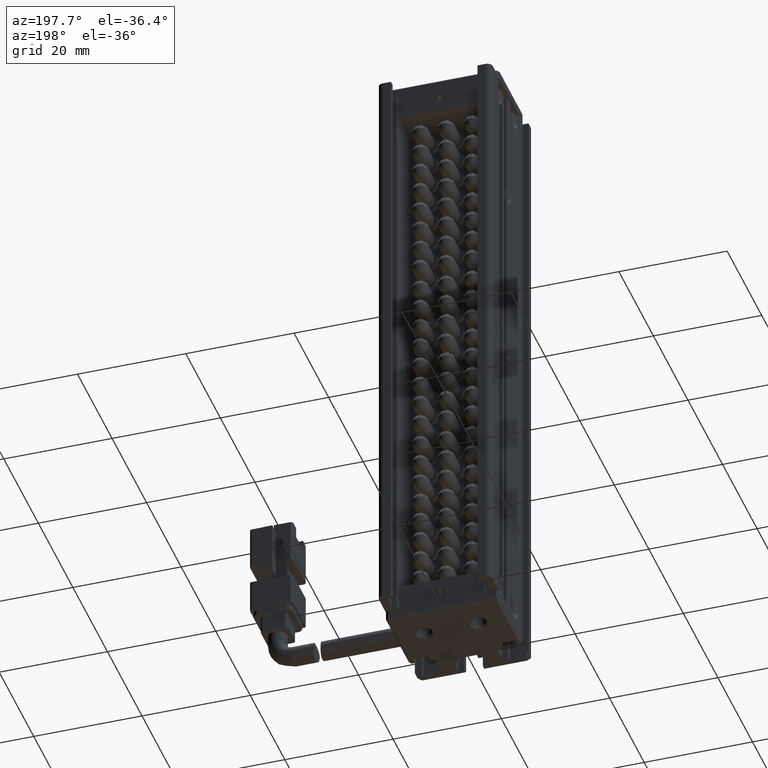
[diagram: clean part render]
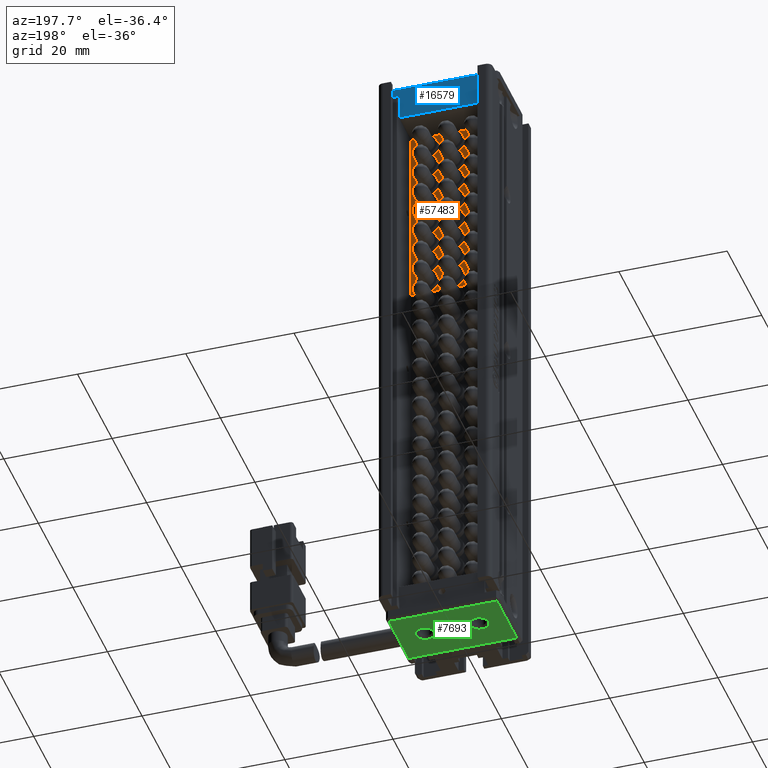
[diagram: same view with three faces highlighted in distinct colors, each labeled with its STEP entity id]
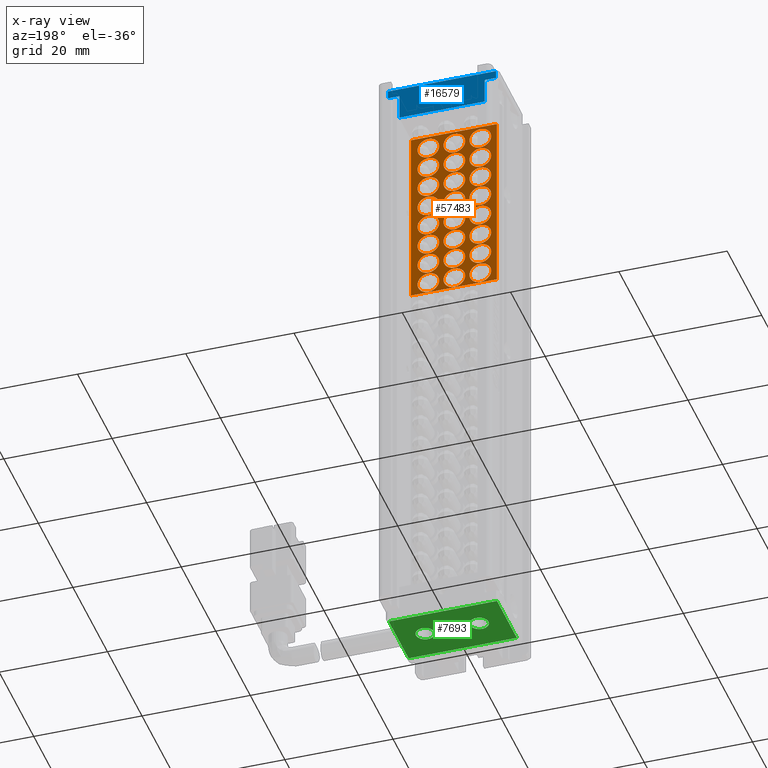
[diagram: x-ray of the same camera — body ghosted, the three highlighted faces saturated]
A machine part, auxiliary view with three faces highlighted in distinct colors.
The next image is the same camera in x-ray (body ghosted, the three faces saturated) — at least one of them is partly hidden behind the body in this view.
Their STEP definitions:

[orange] entity #57483 — the highlighted planar face has unit normal (0, 1, 0).
#55 = AXIS2_PLACEMENT_3D ( 'NONE', #61086, #66676, #21617 ) ;
#68 = CIRCLE ( 'NONE', #17931, 2.000000000000001800 ) ;
#113 = CARTESIAN_POINT ( 'NONE',  ( 36.07537974683543100, 24.49073232304837000, -93.33000000000001300 ) ) ;
#312 = EDGE_CURVE ( 'NONE', #53143, #15955, #49645, .T. ) ;
#319 = CARTESIAN_POINT ( 'NONE',  ( 40.87537974683542800, 24.49073232304837000, -82.93000000000000700 ) ) ;
#407 = CARTESIAN_POINT ( 'NONE',  ( 36.07537974683543100, 24.49073232304837000, -87.12999999999999500 ) ) ;
#472 = ORIENTED_EDGE ( 'NONE', *, *, #59220, .T. ) ;
#491 = EDGE_CURVE ( 'NONE', #19416, #27762, #6587, .T. ) ;
#799 = CIRCLE ( 'NONE', #23007, 2.000000000000001800 ) ;
#885 = VERTEX_POINT ( 'NONE', #5849 ) ;
#966 = VERTEX_POINT ( 'NONE', #40667 ) ;
#1138 = VERTEX_POINT ( 'NONE', #31516 ) ;
#1388 = CIRCLE ( 'NONE', #8320, 2.000000000000001800 ) ;
#1466 = FACE_BOUND ( 'NONE', #12644, .T. ) ;
#1674 = EDGE_CURVE ( 'NONE', #34338, #45052, #68198, .T. ) ;
#1710 = VERTEX_POINT ( 'NONE', #43507 ) ;
#1824 = ORIENTED_EDGE ( 'NONE', *, *, #18839, .T. ) ;
#1922 = CIRCLE ( 'NONE', #39551, 2.000000000000001800 ) ;
#1960 = ORIENTED_EDGE ( 'NONE', *, *, #66289, .T. ) ;
#2003 = VERTEX_POINT ( 'NONE', #31208 ) ;
#2061 = CARTESIAN_POINT ( 'NONE',  ( 40.87537974683542800, 24.49073232304837000, -89.33000000000001300 ) ) ;
#2177 = CIRCLE ( 'NONE', #32893, 2.000000000000001800 ) ;
#2537 = CIRCLE ( 'NONE', #13891, 2.000000000000001800 ) ;
#2540 = AXIS2_PLACEMENT_3D ( 'NONE', #16812, #22430, #16108 ) ;
#2791 = ORIENTED_EDGE ( 'NONE', *, *, #9271, .T. ) ;
#3012 = CIRCLE ( 'NONE', #64262, 2.000000000000001800 ) ;
#3021 = DIRECTION ( 'NONE',  ( 0.0000000000000000000, 0.0000000000000000000, 1.000000000000000000 ) ) ;
#3095 = DIRECTION ( 'NONE',  ( 0.0000000000000000000, -1.000000000000000000, -0.0000000000000000000 ) ) ;
#3464 = CARTESIAN_POINT ( 'NONE',  ( 48.92537974683542500, 24.49073232304837000, -97.65000000000000600 ) ) ;
#3503 = EDGE_LOOP ( 'NONE', ( #66013, #7869 ) ) ;
#3518 = EDGE_LOOP ( 'NONE', ( #11666, #41516 ) ) ;
#3782 = DIRECTION ( 'NONE',  ( 0.0000000000000000000, 0.0000000000000000000, 1.000000000000000000 ) ) ;
#3823 = DIRECTION ( 'NONE',  ( 0.0000000000000000000, -1.000000000000000000, -0.0000000000000000000 ) ) ;
#3896 = DIRECTION ( 'NONE',  ( 0.0000000000000000000, -1.000000000000000000, -0.0000000000000000000 ) ) ;
#3968 = CARTESIAN_POINT ( 'NONE',  ( 40.87537974683542800, 24.49073232304837000, -72.33000000000001300 ) ) ;
#4273 = EDGE_LOOP ( 'NONE', ( #51570, #46376 ) ) ;
#4624 = EDGE_LOOP ( 'NONE', ( #66803, #34521 ) ) ;
#5050 = CARTESIAN_POINT ( 'NONE',  ( 45.67537974683543200, 24.49073232304837000, -80.93000000000000700 ) ) ;
#5275 = CARTESIAN_POINT ( 'NONE',  ( 45.67537974683543200, 24.49073232304837000, -89.12999999999999500 ) ) ;
#5312 = VERTEX_POINT ( 'NONE', #31710 ) ;
#5634 = DIRECTION ( 'NONE',  ( 0.0000000000000000000, -1.000000000000000000, -0.0000000000000000000 ) ) ;
#5646 = DIRECTION ( 'NONE',  ( 0.0000000000000000000, 0.0000000000000000000, 1.000000000000000000 ) ) ;
#5713 = VERTEX_POINT ( 'NONE', #30638 ) ;
#5846 = VERTEX_POINT ( 'NONE', #3464 ) ;
#5849 = CARTESIAN_POINT ( 'NONE',  ( 45.67537974683543200, 24.49073232304837000, -64.12999999999999500 ) ) ;
#5931 = AXIS2_PLACEMENT_3D ( 'NONE', #407, #10855, #22837 ) ;
#6430 = CARTESIAN_POINT ( 'NONE',  ( 45.67537974683543200, 24.49073232304837000, -74.53000000000000100 ) ) ;
#6447 = DIRECTION ( 'NONE',  ( 0.0000000000000000000, -1.000000000000000000, -0.0000000000000000000 ) ) ;
#6534 = EDGE_LOOP ( 'NONE', ( #27317, #1960 ) ) ;
#6587 = LINE ( 'NONE', #62687, #43470 ) ;
#6709 = FACE_BOUND ( 'NONE', #22883, .T. ) ;
#6790 = CARTESIAN_POINT ( 'NONE',  ( 36.07537974683543100, 24.49073232304837000, -70.32999999999999800 ) ) ;
#7025 = DIRECTION ( 'NONE',  ( 0.0000000000000000000, -1.000000000000000000, -0.0000000000000000000 ) ) ;
#7069 = EDGE_CURVE ( 'NONE', #25850, #46071, #10760, .T. ) ;
#7262 = DIRECTION ( 'NONE',  ( 0.0000000000000000000, 0.0000000000000000000, 1.000000000000000000 ) ) ;
#7332 = VERTEX_POINT ( 'NONE', #32083 ) ;
#7685 = EDGE_CURVE ( 'NONE', #34923, #24360, #61450, .T. ) ;
#7869 = ORIENTED_EDGE ( 'NONE', *, *, #21086, .T. ) ;
#8320 = AXIS2_PLACEMENT_3D ( 'NONE', #49371, #54257, #15453 ) ;
#8712 = DIRECTION ( 'NONE',  ( 0.0000000000000000000, 0.0000000000000000000, 1.000000000000000000 ) ) ;
#8741 = CARTESIAN_POINT ( 'NONE',  ( 36.07537974683543100, 24.49073232304837000, -97.53000000000000100 ) ) ;
#8888 = EDGE_CURVE ( 'NONE', #27762, #5846, #61302, .T. ) ;
#8898 = CIRCLE ( 'NONE', #21851, 2.000000000000001800 ) ;
#8972 = VERTEX_POINT ( 'NONE', #3968 ) ;
#9007 = ORIENTED_EDGE ( 'NONE', *, *, #57348, .T. ) ;
#9271 = EDGE_CURVE ( 'NONE', #21108, #30529, #2537, .T. ) ;
#9473 = VERTEX_POINT ( 'NONE', #8741 ) ;
#9483 = ORIENTED_EDGE ( 'NONE', *, *, #8888, .T. ) ;
#10243 = VERTEX_POINT ( 'NONE', #43280 ) ;
#10583 = EDGE_CURVE ( 'NONE', #29877, #28519, #67815, .T. ) ;
#10663 = CARTESIAN_POINT ( 'NONE',  ( 45.67537974683543200, 24.49073232304837000, -84.93000000000000700 ) ) ;
#10674 = VERTEX_POINT ( 'NONE', #71759 ) ;
#10760 = CIRCLE ( 'NONE', #59038, 2.000000000000001800 ) ;
#10855 = DIRECTION ( 'NONE',  ( 0.0000000000000000000, -1.000000000000000000, -0.0000000000000000000 ) ) ;
#10945 = DIRECTION ( 'NONE',  ( 0.0000000000000000000, -1.000000000000000000, -0.0000000000000000000 ) ) ;
#11140 = CARTESIAN_POINT ( 'NONE',  ( 40.87537974683542800, 24.49073232304837000, -74.53000000000000100 ) ) ;
#11207 = ORIENTED_EDGE ( 'NONE', *, *, #54862, .T. ) ;
#11386 = ORIENTED_EDGE ( 'NONE', *, *, #39947, .T. ) ;
#11666 = ORIENTED_EDGE ( 'NONE', *, *, #35017, .T. ) ;
#11685 = DIRECTION ( 'NONE',  ( 0.0000000000000000000, 0.0000000000000000000, 1.000000000000000000 ) ) ;
#11912 = DIRECTION ( 'NONE',  ( 0.0000000000000000000, -1.000000000000000000, -0.0000000000000000000 ) ) ;
#12151 = CARTESIAN_POINT ( 'NONE',  ( 36.07537974683543100, 24.49073232304837000, -91.33000000000001300 ) ) ;
#12165 = EDGE_CURVE ( 'NONE', #24360, #34923, #38180, .T. ) ;
#12239 = DIRECTION ( 'NONE',  ( 0.0000000000000000000, 0.0000000000000000000, 1.000000000000000000 ) ) ;
#12592 = LINE ( 'NONE', #34953, #39879 ) ;
#12644 = EDGE_LOOP ( 'NONE', ( #38757, #21013 ) ) ;
#12732 = CARTESIAN_POINT ( 'NONE',  ( 40.87537974683542800, 24.49073232304837000, -95.53000000000000100 ) ) ;
#12773 = FACE_BOUND ( 'NONE', #37575, .T. ) ;
#12917 = DIRECTION ( 'NONE',  ( 0.0000000000000000000, -1.000000000000000000, -0.0000000000000000000 ) ) ;
#12980 = EDGE_LOOP ( 'NONE', ( #39303, #11207 ) ) ;
#13309 = CARTESIAN_POINT ( 'NONE',  ( 40.87537974683542800, 24.49073232304837000, -97.53000000000000100 ) ) ;
#13356 = DIRECTION ( 'NONE',  ( 0.0000000000000000000, 0.0000000000000000000, 1.000000000000000000 ) ) ;
#13379 = CARTESIAN_POINT ( 'NONE',  ( 45.67537974683543200, 24.49073232304837000, -74.53000000000000100 ) ) ;
#13653 = FACE_BOUND ( 'NONE', #4624, .T. ) ;
#13664 = DIRECTION ( 'NONE',  ( 0.0000000000000000000, -1.000000000000000000, -0.0000000000000000000 ) ) ;
#13891 = AXIS2_PLACEMENT_3D ( 'NONE', #23706, #12917, #62905 ) ;
#14492 = FACE_BOUND ( 'NONE', #12980, .T. ) ;
#14705 = CARTESIAN_POINT ( 'NONE',  ( 36.07537974683543100, 24.49073232304837000, -91.33000000000001300 ) ) ;
#15077 = CARTESIAN_POINT ( 'NONE',  ( 40.87537974683542800, 24.49073232304837000, -70.32999999999999800 ) ) ;
#15158 = CIRCLE ( 'NONE', #34783, 2.000000000000001800 ) ;
#15453 = DIRECTION ( 'NONE',  ( 0.0000000000000000000, 0.0000000000000000000, 1.000000000000000000 ) ) ;
#15478 = CARTESIAN_POINT ( 'NONE',  ( 40.87537974683542800, 24.49073232304837000, -72.53000000000000100 ) ) ;
#15955 = VERTEX_POINT ( 'NONE', #47813 ) ;
#16108 = DIRECTION ( 'NONE',  ( 0.0000000000000000000, 0.0000000000000000000, 1.000000000000000000 ) ) ;
#16147 = CARTESIAN_POINT ( 'NONE',  ( 36.07537974683543100, 24.49073232304837000, -87.12999999999999500 ) ) ;
#16290 = FACE_BOUND ( 'NONE', #48490, .T. ) ;
#16485 = AXIS2_PLACEMENT_3D ( 'NONE', #72574, #17466, #39362 ) ;
#16609 = AXIS2_PLACEMENT_3D ( 'NONE', #30731, #69832, #30483 ) ;
#16812 = CARTESIAN_POINT ( 'NONE',  ( 40.87537974683542800, 24.49073232304837000, -91.33000000000001300 ) ) ;
#16886 = VERTEX_POINT ( 'NONE', #53705 ) ;
#17012 = EDGE_CURVE ( 'NONE', #966, #885, #20286, .T. ) ;
#17466 = DIRECTION ( 'NONE',  ( 0.0000000000000000000, -1.000000000000000000, -0.0000000000000000000 ) ) ;
#17506 = DIRECTION ( 'NONE',  ( 0.0000000000000000000, -1.000000000000000000, -0.0000000000000000000 ) ) ;
#17589 = AXIS2_PLACEMENT_3D ( 'NONE', #33058, #10945, #38975 ) ;
#17780 = CARTESIAN_POINT ( 'NONE',  ( 33.02537974683542600, 24.49073232304837000, -97.65000000000000600 ) ) ;
#17931 = AXIS2_PLACEMENT_3D ( 'NONE', #6430, #62202, #34093 ) ;
#18116 = FACE_OUTER_BOUND ( 'NONE', #39612, .T. ) ;
#18202 = EDGE_CURVE ( 'NONE', #43420, #1138, #41870, .T. ) ;
#18339 = AXIS2_PLACEMENT_3D ( 'NONE', #34455, #17506, #39390 ) ;
#18450 = DIRECTION ( 'NONE',  ( 0.0000000000000000000, 0.0000000000000000000, 1.000000000000000000 ) ) ;
#18483 = DIRECTION ( 'NONE',  ( 0.0000000000000000000, -1.000000000000000000, -0.0000000000000000000 ) ) ;
#18570 = AXIS2_PLACEMENT_3D ( 'NONE', #35811, #13664, #19353 ) ;
#18795 = CARTESIAN_POINT ( 'NONE',  ( 45.67537974683543200, 24.49073232304837000, -93.53000000000000100 ) ) ;
#18839 = EDGE_CURVE ( 'NONE', #10243, #62058, #71276, .T. ) ;
#18841 = CIRCLE ( 'NONE', #39254, 2.000000000000001800 ) ;
#18938 = CARTESIAN_POINT ( 'NONE',  ( 36.07537974683543100, 24.49073232304837000, -74.53000000000000100 ) ) ;
#19025 = DIRECTION ( 'NONE',  ( 0.0000000000000000000, 0.0000000000000000000, 1.000000000000000000 ) ) ;
#19125 = EDGE_LOOP ( 'NONE', ( #33461, #42203 ) ) ;
#19353 = DIRECTION ( 'NONE',  ( 0.0000000000000000000, 0.0000000000000000000, 1.000000000000000000 ) ) ;
#19387 = DIRECTION ( 'NONE',  ( 0.0000000000000000000, -1.000000000000000000, -0.0000000000000000000 ) ) ;
#19416 = VERTEX_POINT ( 'NONE', #34187 ) ;
#19761 = DIRECTION ( 'NONE',  ( 0.0000000000000000000, -1.000000000000000000, -0.0000000000000000000 ) ) ;
#20106 = ORIENTED_EDGE ( 'NONE', *, *, #51855, .T. ) ;
#20286 = CIRCLE ( 'NONE', #20787, 2.000000000000001800 ) ;
#20629 = VERTEX_POINT ( 'NONE', #57304 ) ;
#20787 = AXIS2_PLACEMENT_3D ( 'NONE', #67503, #5634, #58069 ) ;
#20790 = VERTEX_POINT ( 'NONE', #43071 ) ;
#20851 = CARTESIAN_POINT ( 'NONE',  ( 40.87537974683542800, 24.49073232304837000, -87.12999999999999500 ) ) ;
#20874 = AXIS2_PLACEMENT_3D ( 'NONE', #38286, #21049, #21267 ) ;
#20896 = DIRECTION ( 'NONE',  ( 0.0000000000000000000, 0.0000000000000000000, 1.000000000000000000 ) ) ;
#21013 = ORIENTED_EDGE ( 'NONE', *, *, #69645, .T. ) ;
#21049 = DIRECTION ( 'NONE',  ( 0.0000000000000000000, -1.000000000000000000, -0.0000000000000000000 ) ) ;
#21086 = EDGE_CURVE ( 'NONE', #31531, #52400, #21120, .T. ) ;
#21108 = VERTEX_POINT ( 'NONE', #56522 ) ;
#21120 = CIRCLE ( 'NONE', #16485, 2.000000000000001800 ) ;
#21235 = VERTEX_POINT ( 'NONE', #24048 ) ;
#21267 = DIRECTION ( 'NONE',  ( 0.0000000000000000000, 0.0000000000000000000, 1.000000000000000000 ) ) ;
#21542 = FACE_BOUND ( 'NONE', #24824, .T. ) ;
#21617 = DIRECTION ( 'NONE',  ( 0.0000000000000000000, 0.0000000000000000000, 1.000000000000000000 ) ) ;
#21750 = CARTESIAN_POINT ( 'NONE',  ( 40.97537974683542900, 24.49073232304837000, -80.67499999999999700 ) ) ;
#21851 = AXIS2_PLACEMENT_3D ( 'NONE', #31899, #32125, #37314 ) ;
#21875 = CIRCLE ( 'NONE', #55544, 2.000000000000001800 ) ;
#22416 = CIRCLE ( 'NONE', #52521, 2.000000000000001800 ) ;
#22430 = DIRECTION ( 'NONE',  ( 0.0000000000000000000, -1.000000000000000000, -0.0000000000000000000 ) ) ;
#22705 = AXIS2_PLACEMENT_3D ( 'NONE', #32037, #19761, #8712 ) ;
#22711 = DIRECTION ( 'NONE',  ( 0.0000000000000000000, 0.0000000000000000000, 1.000000000000000000 ) ) ;
#22783 = CIRCLE ( 'NONE', #57121, 2.000000000000001800 ) ;
#22837 = DIRECTION ( 'NONE',  ( 0.0000000000000000000, 0.0000000000000000000, 1.000000000000000000 ) ) ;
#22883 = EDGE_LOOP ( 'NONE', ( #40351, #70827 ) ) ;
#22953 = CARTESIAN_POINT ( 'NONE',  ( 36.07537974683543100, 24.49073232304837000, -82.93000000000000700 ) ) ;
#23007 = AXIS2_PLACEMENT_3D ( 'NONE', #42472, #53467, #3021 ) ;
#23180 = DIRECTION ( 'NONE',  ( 0.0000000000000000000, -1.000000000000000000, -0.0000000000000000000 ) ) ;
#23371 = DIRECTION ( 'NONE',  ( -1.000000000000000000, -0.0000000000000000000, -0.0000000000000000000 ) ) ;
#23551 = AXIS2_PLACEMENT_3D ( 'NONE', #42650, #41932, #36762 ) ;
#23706 = CARTESIAN_POINT ( 'NONE',  ( 40.87537974683542800, 24.49073232304837000, -74.53000000000000100 ) ) ;
#23915 = DIRECTION ( 'NONE',  ( 0.0000000000000000000, 0.0000000000000000000, 1.000000000000000000 ) ) ;
#23988 = EDGE_CURVE ( 'NONE', #49775, #58721, #38552, .T. ) ;
#24048 = CARTESIAN_POINT ( 'NONE',  ( 45.67537974683543200, 24.49073232304837000, -76.72999999999999000 ) ) ;
#24360 = VERTEX_POINT ( 'NONE', #57003 ) ;
#24730 = DIRECTION ( 'NONE',  ( 0.0000000000000000000, 0.0000000000000000000, 1.000000000000000000 ) ) ;
#24817 = VERTEX_POINT ( 'NONE', #13309 ) ;
#24824 = EDGE_LOOP ( 'NONE', ( #27182, #51826 ) ) ;
#25432 = EDGE_LOOP ( 'NONE', ( #63363, #52691 ) ) ;
#25629 = DIRECTION ( 'NONE',  ( 0.0000000000000000000, 0.0000000000000000000, 1.000000000000000000 ) ) ;
#25631 = ORIENTED_EDGE ( 'NONE', *, *, #38139, .T. ) ;
#25840 = EDGE_CURVE ( 'NONE', #72513, #31862, #31101, .T. ) ;
#25850 = VERTEX_POINT ( 'NONE', #28875 ) ;
#25907 = VERTEX_POINT ( 'NONE', #18795 ) ;
#26186 = ORIENTED_EDGE ( 'NONE', *, *, #26522, .T. ) ;
#26229 = AXIS2_PLACEMENT_3D ( 'NONE', #41147, #57799, #68703 ) ;
#26522 = EDGE_CURVE ( 'NONE', #1710, #66280, #66680, .T. ) ;
#26930 = DIRECTION ( 'NONE',  ( 0.0000000000000000000, 0.0000000000000000000, 1.000000000000000000 ) ) ;
#26935 = DIRECTION ( 'NONE',  ( 0.0000000000000000000, 0.0000000000000000000, 1.000000000000000000 ) ) ;
#26990 = VERTEX_POINT ( 'NONE', #56452 ) ;
#26993 = DIRECTION ( 'NONE',  ( 0.0000000000000000000, 0.0000000000000000000, 1.000000000000000000 ) ) ;
#27132 = EDGE_CURVE ( 'NONE', #24817, #20629, #44758, .T. ) ;
#27182 = ORIENTED_EDGE ( 'NONE', *, *, #30119, .T. ) ;
#27223 = DIRECTION ( 'NONE',  ( 0.0000000000000000000, -1.000000000000000000, -0.0000000000000000000 ) ) ;
#27317 = ORIENTED_EDGE ( 'NONE', *, *, #61349, .T. ) ;
#27743 = FACE_BOUND ( 'NONE', #71631, .T. ) ;
#27762 = VERTEX_POINT ( 'NONE', #42577 ) ;
#28412 = DIRECTION ( 'NONE',  ( 0.0000000000000000000, -1.000000000000000000, -0.0000000000000000000 ) ) ;
#28519 = VERTEX_POINT ( 'NONE', #66579 ) ;
#28615 = FACE_BOUND ( 'NONE', #40247, .T. ) ;
#28632 = DIRECTION ( 'NONE',  ( 0.0000000000000000000, -1.000000000000000000, -0.0000000000000000000 ) ) ;
#28875 = CARTESIAN_POINT ( 'NONE',  ( 45.67537974683543200, 24.49073232304837000, -85.12999999999999500 ) ) ;
#28975 = AXIS2_PLACEMENT_3D ( 'NONE', #13379, #52664, #19025 ) ;
#29071 = VERTEX_POINT ( 'NONE', #49245 ) ;
#29103 = CIRCLE ( 'NONE', #17589, 2.000000000000001800 ) ;
#29391 = EDGE_CURVE ( 'NONE', #16886, #7332, #56736, .T. ) ;
#29480 = FACE_BOUND ( 'NONE', #35224, .T. ) ;
#29523 = EDGE_CURVE ( 'NONE', #68647, #9473, #31232, .T. ) ;
#29603 = CIRCLE ( 'NONE', #2540, 2.000000000000001800 ) ;
#29877 = VERTEX_POINT ( 'NONE', #70528 ) ;
#29904 = EDGE_LOOP ( 'NONE', ( #47946, #72625 ) ) ;
#30002 = ORIENTED_EDGE ( 'NONE', *, *, #30030, .T. ) ;
#30030 = EDGE_CURVE ( 'NONE', #30529, #21108, #59093, .T. ) ;
#30086 = AXIS2_PLACEMENT_3D ( 'NONE', #67274, #51215, #5646 ) ;
#30119 = EDGE_CURVE ( 'NONE', #28519, #29877, #15158, .T. ) ;
#30175 = AXIS2_PLACEMENT_3D ( 'NONE', #41075, #46457, #18450 ) ;
#30483 = DIRECTION ( 'NONE',  ( 0.0000000000000000000, 0.0000000000000000000, 1.000000000000000000 ) ) ;
#30529 = VERTEX_POINT ( 'NONE', #15478 ) ;
#30631 = VERTEX_POINT ( 'NONE', #68819 ) ;
#30638 = CARTESIAN_POINT ( 'NONE',  ( 36.07537974683543100, 24.49073232304837000, -80.93000000000000700 ) ) ;
#30731 = CARTESIAN_POINT ( 'NONE',  ( 40.87537974683542800, 24.49073232304837000, -78.72999999999999000 ) ) ;
#31101 = CIRCLE ( 'NONE', #62084, 2.000000000000001800 ) ;
#31208 = CARTESIAN_POINT ( 'NONE',  ( 36.07537974683543100, 24.49073232304837000, -84.93000000000000700 ) ) ;
#31232 = CIRCLE ( 'NONE', #55, 2.000000000000001800 ) ;
#31257 = DIRECTION ( 'NONE',  ( 0.0000000000000000000, 0.0000000000000000000, 1.000000000000000000 ) ) ;
#31287 = CARTESIAN_POINT ( 'NONE',  ( 36.07537974683543100, 24.49073232304837000, -72.53000000000000100 ) ) ;
#31516 = CARTESIAN_POINT ( 'NONE',  ( 40.87537974683542800, 24.49073232304837000, -84.93000000000000700 ) ) ;
#31531 = VERTEX_POINT ( 'NONE', #44360 ) ;
#31543 = CARTESIAN_POINT ( 'NONE',  ( 40.87537974683542800, 24.49073232304837000, -80.93000000000000700 ) ) ;
#31632 = VERTEX_POINT ( 'NONE', #17780 ) ;
#31710 = CARTESIAN_POINT ( 'NONE',  ( 36.07537974683543100, 24.49073232304837000, -89.33000000000001300 ) ) ;
#31753 = CARTESIAN_POINT ( 'NONE',  ( 45.67537974683543200, 24.49073232304837000, -72.33000000000001300 ) ) ;
#31862 = VERTEX_POINT ( 'NONE', #31753 ) ;
#31899 = CARTESIAN_POINT ( 'NONE',  ( 40.87537974683542800, 24.49073232304837000, -95.53000000000000100 ) ) ;
#32037 = CARTESIAN_POINT ( 'NONE',  ( 45.67537974683543200, 24.49073232304837000, -91.33000000000001300 ) ) ;
#32083 = CARTESIAN_POINT ( 'NONE',  ( 36.07537974683543100, 24.49073232304837000, -68.12999999999999500 ) ) ;
#32125 = DIRECTION ( 'NONE',  ( 0.0000000000000000000, -1.000000000000000000, -0.0000000000000000000 ) ) ;
#32150 = EDGE_CURVE ( 'NONE', #10674, #47270, #47755, .T. ) ;
#32893 = AXIS2_PLACEMENT_3D ( 'NONE', #22953, #23180, #22711 ) ;
#33058 = CARTESIAN_POINT ( 'NONE',  ( 40.87537974683542800, 24.49073232304837000, -66.12999999999999500 ) ) ;
#33070 = FACE_BOUND ( 'NONE', #3518, .T. ) ;
#33100 = DIRECTION ( 'NONE',  ( 0.0000000000000000000, 1.000000000000000000, 0.0000000000000000000 ) ) ;
#33461 = ORIENTED_EDGE ( 'NONE', *, *, #7069, .T. ) ;
#33826 = AXIS2_PLACEMENT_3D ( 'NONE', #65384, #37562, #43226 ) ;
#34093 = DIRECTION ( 'NONE',  ( 0.0000000000000000000, 0.0000000000000000000, 1.000000000000000000 ) ) ;
#34187 = CARTESIAN_POINT ( 'NONE',  ( 33.02537974683542600, 24.49073232304837000, -63.70000000000001000 ) ) ;
#34338 = VERTEX_POINT ( 'NONE', #5050 ) ;
#34406 = VERTEX_POINT ( 'NONE', #66718 ) ;
#34455 = CARTESIAN_POINT ( 'NONE',  ( 36.07537974683543100, 24.49073232304837000, -66.12999999999999500 ) ) ;
#34521 = ORIENTED_EDGE ( 'NONE', *, *, #50465, .T. ) ;
#34783 = AXIS2_PLACEMENT_3D ( 'NONE', #6790, #7025, #7262 ) ;
#34923 = VERTEX_POINT ( 'NONE', #44500 ) ;
#34953 = CARTESIAN_POINT ( 'NONE',  ( 33.02537974683542600, 24.49073232304837000, -97.65000000000000600 ) ) ;
#35017 = EDGE_CURVE ( 'NONE', #21235, #20790, #21875, .T. ) ;
#35194 = ORIENTED_EDGE ( 'NONE', *, *, #43757, .T. ) ;
#35224 = EDGE_LOOP ( 'NONE', ( #36694, #53739 ) ) ;
#35358 = DIRECTION ( 'NONE',  ( 0.0000000000000000000, -1.000000000000000000, -0.0000000000000000000 ) ) ;
#35629 = CARTESIAN_POINT ( 'NONE',  ( 45.67537974683543200, 24.49073232304837000, -68.32999999999999800 ) ) ;
#35811 = CARTESIAN_POINT ( 'NONE',  ( 45.67537974683543200, 24.49073232304837000, -87.12999999999999500 ) ) ;
#35911 = DIRECTION ( 'NONE',  ( 0.0000000000000000000, -1.000000000000000000, -0.0000000000000000000 ) ) ;
#36300 = AXIS2_PLACEMENT_3D ( 'NONE', #18938, #35911, #63297 ) ;
#36524 = FACE_BOUND ( 'NONE', #53571, .T. ) ;
#36694 = ORIENTED_EDGE ( 'NONE', *, *, #29523, .T. ) ;
#36762 = DIRECTION ( 'NONE',  ( 0.0000000000000000000, 0.0000000000000000000, 1.000000000000000000 ) ) ;
#37052 = CIRCLE ( 'NONE', #70854, 2.000000000000001800 ) ;
#37172 = AXIS2_PLACEMENT_3D ( 'NONE', #11140, #39648, #61384 ) ;
#37202 = EDGE_LOOP ( 'NONE', ( #11386, #66474 ) ) ;
#37314 = DIRECTION ( 'NONE',  ( 0.0000000000000000000, 0.0000000000000000000, 1.000000000000000000 ) ) ;
#37334 = CIRCLE ( 'NONE', #30175, 2.000000000000001800 ) ;
#37562 = DIRECTION ( 'NONE',  ( 0.0000000000000000000, -1.000000000000000000, -0.0000000000000000000 ) ) ;
#37575 = EDGE_LOOP ( 'NONE', ( #71667, #25631 ) ) ;
#37616 = ORIENTED_EDGE ( 'NONE', *, *, #46622, .T. ) ;
#37796 = CARTESIAN_POINT ( 'NONE',  ( 48.92537974683542500, 24.49073232304837000, -63.70000000000001000 ) ) ;
#37802 = ORIENTED_EDGE ( 'NONE', *, *, #29391, .T. ) ;
#38041 = EDGE_CURVE ( 'NONE', #42355, #5312, #22783, .T. ) ;
#38109 = ORIENTED_EDGE ( 'NONE', *, *, #27132, .T. ) ;
#38115 = EDGE_LOOP ( 'NONE', ( #9007, #26186 ) ) ;
#38139 = EDGE_CURVE ( 'NONE', #68457, #68000, #63086, .T. ) ;
#38180 = CIRCLE ( 'NONE', #23551, 2.000000000000001800 ) ;
#38286 = CARTESIAN_POINT ( 'NONE',  ( 40.87537974683542800, 24.49073232304837000, -78.72999999999999000 ) ) ;
#38552 = CIRCLE ( 'NONE', #65597, 2.000000000000001800 ) ;
#38757 = ORIENTED_EDGE ( 'NONE', *, *, #49647, .T. ) ;
#38975 = DIRECTION ( 'NONE',  ( 0.0000000000000000000, 0.0000000000000000000, 1.000000000000000000 ) ) ;
#39254 = AXIS2_PLACEMENT_3D ( 'NONE', #56173, #28412, #67066 ) ;
#39303 = ORIENTED_EDGE ( 'NONE', *, *, #18202, .T. ) ;
#39362 = DIRECTION ( 'NONE',  ( 0.0000000000000000000, 0.0000000000000000000, 1.000000000000000000 ) ) ;
#39390 = DIRECTION ( 'NONE',  ( 0.0000000000000000000, 0.0000000000000000000, 1.000000000000000000 ) ) ;
#39480 = ORIENTED_EDGE ( 'NONE', *, *, #63182, .T. ) ;
#39551 = AXIS2_PLACEMENT_3D ( 'NONE', #16147, #66105, #26935 ) ;
#39612 = EDGE_LOOP ( 'NONE', ( #60960, #9483, #20106, #39480 ) ) ;
#39648 = DIRECTION ( 'NONE',  ( 0.0000000000000000000, -1.000000000000000000, -0.0000000000000000000 ) ) ;
#39756 = CARTESIAN_POINT ( 'NONE',  ( 40.87537974683542800, 24.49073232304837000, -85.12999999999999500 ) ) ;
#39879 = VECTOR ( 'NONE', #23371, 1000.000000000000000 ) ;
#39928 = DIRECTION ( 'NONE',  ( 0.0000000000000000000, -1.000000000000000000, -0.0000000000000000000 ) ) ;
#39947 = EDGE_CURVE ( 'NONE', #26990, #29071, #3012, .T. ) ;
#40247 = EDGE_LOOP ( 'NONE', ( #30002, #2791 ) ) ;
#40351 = ORIENTED_EDGE ( 'NONE', *, *, #55392, .T. ) ;
#40539 = EDGE_CURVE ( 'NONE', #5312, #42355, #48378, .T. ) ;
#40667 = CARTESIAN_POINT ( 'NONE',  ( 45.67537974683543200, 24.49073232304837000, -68.12999999999999500 ) ) ;
#40858 = EDGE_CURVE ( 'NONE', #62058, #10243, #68, .T. ) ;
#41053 = ORIENTED_EDGE ( 'NONE', *, *, #45132, .T. ) ;
#41075 = CARTESIAN_POINT ( 'NONE',  ( 40.87537974683542800, 24.49073232304837000, -87.12999999999999500 ) ) ;
#41147 = CARTESIAN_POINT ( 'NONE',  ( 45.67537974683543200, 24.49073232304837000, -82.93000000000000700 ) ) ;
#41347 = EDGE_CURVE ( 'NONE', #52400, #31531, #29603, .T. ) ;
#41351 = CARTESIAN_POINT ( 'NONE',  ( 45.67537974683543200, 24.49073232304837000, -78.72999999999999000 ) ) ;
#41516 = ORIENTED_EDGE ( 'NONE', *, *, #62812, .T. ) ;
#41870 = CIRCLE ( 'NONE', #44936, 2.000000000000001800 ) ;
#41891 = FACE_BOUND ( 'NONE', #46793, .T. ) ;
#41932 = DIRECTION ( 'NONE',  ( 0.0000000000000000000, -1.000000000000000000, -0.0000000000000000000 ) ) ;
#41950 = CIRCLE ( 'NONE', #65533, 2.000000000000001800 ) ;
#42203 = ORIENTED_EDGE ( 'NONE', *, *, #42604, .T. ) ;
#42355 = VERTEX_POINT ( 'NONE', #113 ) ;
#42472 = CARTESIAN_POINT ( 'NONE',  ( 36.07537974683543100, 24.49073232304837000, -95.53000000000000100 ) ) ;
#42494 = EDGE_LOOP ( 'NONE', ( #59762, #35194 ) ) ;
#42577 = CARTESIAN_POINT ( 'NONE',  ( 48.92537974683542500, 24.49073232304837000, -63.70000000000001000 ) ) ;
#42604 = EDGE_CURVE ( 'NONE', #46071, #25850, #47591, .T. ) ;
#42650 = CARTESIAN_POINT ( 'NONE',  ( 45.67537974683543200, 24.49073232304837000, -91.33000000000001300 ) ) ;
#42756 = EDGE_CURVE ( 'NONE', #58721, #49775, #29103, .T. ) ;
#43071 = CARTESIAN_POINT ( 'NONE',  ( 45.67537974683543200, 24.49073232304837000, -80.72999999999999000 ) ) ;
#43226 = DIRECTION ( 'NONE',  ( 0.0000000000000000000, 0.0000000000000000000, 1.000000000000000000 ) ) ;
#43280 = CARTESIAN_POINT ( 'NONE',  ( 45.67537974683543200, 24.49073232304837000, -72.53000000000000100 ) ) ;
#43420 = VERTEX_POINT ( 'NONE', #31543 ) ;
#43470 = VECTOR ( 'NONE', #68304, 1000.000000000000000 ) ;
#43507 = CARTESIAN_POINT ( 'NONE',  ( 40.87537974683542800, 24.49073232304837000, -80.72999999999999000 ) ) ;
#43557 = DIRECTION ( 'NONE',  ( 0.0000000000000000000, -1.000000000000000000, -0.0000000000000000000 ) ) ;
#43593 = FACE_BOUND ( 'NONE', #56230, .T. ) ;
#43757 = EDGE_CURVE ( 'NONE', #31862, #72513, #41950, .T. ) ;
#43880 = CIRCLE ( 'NONE', #49114, 2.000000000000001800 ) ;
#43895 = ORIENTED_EDGE ( 'NONE', *, *, #40858, .T. ) ;
#44169 = DIRECTION ( 'NONE',  ( 0.0000000000000000000, 0.0000000000000000000, 1.000000000000000000 ) ) ;
#44360 = CARTESIAN_POINT ( 'NONE',  ( 40.87537974683542800, 24.49073232304837000, -93.33000000000001300 ) ) ;
#44438 = FACE_BOUND ( 'NONE', #25432, .T. ) ;
#44500 = CARTESIAN_POINT ( 'NONE',  ( 45.67537974683543200, 24.49073232304837000, -93.33000000000001300 ) ) ;
#44758 = CIRCLE ( 'NONE', #55215, 2.000000000000001800 ) ;
#44881 = CIRCLE ( 'NONE', #63616, 2.000000000000001800 ) ;
#44936 = AXIS2_PLACEMENT_3D ( 'NONE', #69047, #35358, #24730 ) ;
#45052 = VERTEX_POINT ( 'NONE', #10663 ) ;
#45132 = EDGE_CURVE ( 'NONE', #7332, #16886, #68636, .T. ) ;
#45880 = AXIS2_PLACEMENT_3D ( 'NONE', #65139, #19387, #26930 ) ;
#46071 = VERTEX_POINT ( 'NONE', #5275 ) ;
#46146 = DIRECTION ( 'NONE',  ( 0.0000000000000000000, 0.0000000000000000000, 1.000000000000000000 ) ) ;
#46176 = FACE_BOUND ( 'NONE', #37202, .T. ) ;
#46376 = ORIENTED_EDGE ( 'NONE', *, *, #42756, .T. ) ;
#46457 = DIRECTION ( 'NONE',  ( 0.0000000000000000000, -1.000000000000000000, -0.0000000000000000000 ) ) ;
#46493 = DIRECTION ( 'NONE',  ( 0.0000000000000000000, 0.0000000000000000000, 1.000000000000000000 ) ) ;
#46622 = EDGE_CURVE ( 'NONE', #885, #966, #18841, .T. ) ;
#46793 = EDGE_LOOP ( 'NONE', ( #1824, #43895 ) ) ;
#47039 = DIRECTION ( 'NONE',  ( 0.0000000000000000000, -1.000000000000000000, -0.0000000000000000000 ) ) ;
#47055 = CARTESIAN_POINT ( 'NONE',  ( 36.07537974683543100, 24.49073232304837000, -93.53000000000000100 ) ) ;
#47270 = VERTEX_POINT ( 'NONE', #67949 ) ;
#47591 = CIRCLE ( 'NONE', #18570, 2.000000000000001800 ) ;
#47596 = CARTESIAN_POINT ( 'NONE',  ( 45.67537974683543200, 24.49073232304837000, -87.12999999999999500 ) ) ;
#47755 = CIRCLE ( 'NONE', #5931, 2.000000000000001800 ) ;
#47813 = CARTESIAN_POINT ( 'NONE',  ( 36.07537974683543100, 24.49073232304837000, -76.53000000000000100 ) ) ;
#47946 = ORIENTED_EDGE ( 'NONE', *, *, #40539, .T. ) ;
#48035 = AXIS2_PLACEMENT_3D ( 'NONE', #68943, #47039, #13356 ) ;
#48378 = CIRCLE ( 'NONE', #68102, 2.000000000000001800 ) ;
#48490 = EDGE_LOOP ( 'NONE', ( #57313, #38109 ) ) ;
#49114 = AXIS2_PLACEMENT_3D ( 'NONE', #15077, #3896, #55363 ) ;
#49245 = CARTESIAN_POINT ( 'NONE',  ( 36.07537974683543100, 24.49073232304837000, -80.72999999999999000 ) ) ;
#49371 = CARTESIAN_POINT ( 'NONE',  ( 45.67537974683543200, 24.49073232304837000, -95.53000000000000100 ) ) ;
#49645 = CIRCLE ( 'NONE', #36300, 2.000000000000001800 ) ;
#49647 = EDGE_CURVE ( 'NONE', #25907, #30631, #63455, .T. ) ;
#49704 = EDGE_CURVE ( 'NONE', #2003, #5713, #2177, .T. ) ;
#49775 = VERTEX_POINT ( 'NONE', #68244 ) ;
#50465 = EDGE_CURVE ( 'NONE', #15955, #53143, #65076, .T. ) ;
#51061 = CARTESIAN_POINT ( 'NONE',  ( 45.67537974683543200, 24.49073232304837000, -78.72999999999999000 ) ) ;
#51215 = DIRECTION ( 'NONE',  ( 0.0000000000000000000, -1.000000000000000000, -0.0000000000000000000 ) ) ;
#51484 = DIRECTION ( 'NONE',  ( 0.0000000000000000000, -1.000000000000000000, -0.0000000000000000000 ) ) ;
#51570 = ORIENTED_EDGE ( 'NONE', *, *, #23988, .T. ) ;
#51795 = DIRECTION ( 'NONE',  ( 0.0000000000000000000, 0.0000000000000000000, 1.000000000000000000 ) ) ;
#51826 = ORIENTED_EDGE ( 'NONE', *, *, #10583, .T. ) ;
#51855 = EDGE_CURVE ( 'NONE', #5846, #31632, #12592, .T. ) ;
#52332 = CARTESIAN_POINT ( 'NONE',  ( 45.67537974683543200, 24.49073232304837000, -70.32999999999999800 ) ) ;
#52400 = VERTEX_POINT ( 'NONE', #2061 ) ;
#52521 = AXIS2_PLACEMENT_3D ( 'NONE', #41351, #18483, #46493 ) ;
#52617 = EDGE_CURVE ( 'NONE', #20629, #24817, #8898, .T. ) ;
#52664 = DIRECTION ( 'NONE',  ( 0.0000000000000000000, -1.000000000000000000, -0.0000000000000000000 ) ) ;
#52691 = ORIENTED_EDGE ( 'NONE', *, *, #7685, .T. ) ;
#53143 = VERTEX_POINT ( 'NONE', #31287 ) ;
#53467 = DIRECTION ( 'NONE',  ( 0.0000000000000000000, -1.000000000000000000, -0.0000000000000000000 ) ) ;
#53502 = CARTESIAN_POINT ( 'NONE',  ( 40.87537974683542800, 24.49073232304837000, -68.12999999999999500 ) ) ;
#53571 = EDGE_LOOP ( 'NONE', ( #71784, #58653 ) ) ;
#53705 = CARTESIAN_POINT ( 'NONE',  ( 36.07537974683543100, 24.49073232304837000, -64.12999999999999500 ) ) ;
#53739 = ORIENTED_EDGE ( 'NONE', *, *, #64472, .T. ) ;
#54028 = CARTESIAN_POINT ( 'NONE',  ( 45.67537974683543200, 24.49073232304837000, -82.93000000000000700 ) ) ;
#54257 = DIRECTION ( 'NONE',  ( 0.0000000000000000000, -1.000000000000000000, -0.0000000000000000000 ) ) ;
#54446 = CARTESIAN_POINT ( 'NONE',  ( 45.67537974683543200, 24.49073232304837000, -76.53000000000000100 ) ) ;
#54752 = DIRECTION ( 'NONE',  ( 0.0000000000000000000, -1.000000000000000000, -0.0000000000000000000 ) ) ;
#54788 = VECTOR ( 'NONE', #67122, 1000.000000000000000 ) ;
#54862 = EDGE_CURVE ( 'NONE', #1138, #43420, #37052, .T. ) ;
#55215 = AXIS2_PLACEMENT_3D ( 'NONE', #12732, #69022, #46146 ) ;
#55363 = DIRECTION ( 'NONE',  ( 0.0000000000000000000, 0.0000000000000000000, 1.000000000000000000 ) ) ;
#55392 = EDGE_CURVE ( 'NONE', #5713, #2003, #61306, .T. ) ;
#55544 = AXIS2_PLACEMENT_3D ( 'NONE', #51061, #62984, #51795 ) ;
#55747 = AXIS2_PLACEMENT_3D ( 'NONE', #21750, #33100, #44169 ) ;
#56173 = CARTESIAN_POINT ( 'NONE',  ( 45.67537974683543200, 24.49073232304837000, -66.12999999999999500 ) ) ;
#56230 = EDGE_LOOP ( 'NONE', ( #66301, #472 ) ) ;
#56452 = CARTESIAN_POINT ( 'NONE',  ( 36.07537974683543100, 24.49073232304837000, -76.72999999999999000 ) ) ;
#56522 = CARTESIAN_POINT ( 'NONE',  ( 40.87537974683542800, 24.49073232304837000, -76.53000000000000100 ) ) ;
#56624 = CARTESIAN_POINT ( 'NONE',  ( 45.67537974683543200, 24.49073232304837000, -70.32999999999999800 ) ) ;
#56632 = CARTESIAN_POINT ( 'NONE',  ( 40.87537974683542800, 24.49073232304837000, -70.32999999999999800 ) ) ;
#56736 = CIRCLE ( 'NONE', #70314, 2.000000000000001800 ) ;
#56786 = FACE_BOUND ( 'NONE', #42494, .T. ) ;
#56877 = PLANE ( 'NONE',  #55747 ) ;
#57003 = CARTESIAN_POINT ( 'NONE',  ( 45.67537974683543200, 24.49073232304837000, -89.33000000000001300 ) ) ;
#57121 = AXIS2_PLACEMENT_3D ( 'NONE', #14705, #3095, #59388 ) ;
#57304 = CARTESIAN_POINT ( 'NONE',  ( 40.87537974683542800, 24.49073232304837000, -93.53000000000000100 ) ) ;
#57313 = ORIENTED_EDGE ( 'NONE', *, *, #52617, .T. ) ;
#57334 = EDGE_CURVE ( 'NONE', #29071, #26990, #65395, .T. ) ;
#57348 = EDGE_CURVE ( 'NONE', #66280, #1710, #70651, .T. ) ;
#57483 = ADVANCED_FACE ( 'NONE', ( #18116, #27743, #56786, #41891, #33070, #36524, #64480, #44438, #1466, #67986, #59291, #28615, #61893, #14492, #12773, #69727, #16290, #71505, #21542, #13653, #46176, #6709, #43593, #72349, #29480 ), #56877, .T. ) ;
#57730 = DIRECTION ( 'NONE',  ( 0.0000000000000000000, 0.0000000000000000000, 1.000000000000000000 ) ) ;
#57799 = DIRECTION ( 'NONE',  ( 0.0000000000000000000, -1.000000000000000000, -0.0000000000000000000 ) ) ;
#57908 = AXIS2_PLACEMENT_3D ( 'NONE', #70598, #3823, #20896 ) ;
#58069 = DIRECTION ( 'NONE',  ( 0.0000000000000000000, 0.0000000000000000000, 1.000000000000000000 ) ) ;
#58495 = AXIS2_PLACEMENT_3D ( 'NONE', #20851, #27223, #3782 ) ;
#58653 = ORIENTED_EDGE ( 'NONE', *, *, #70441, .T. ) ;
#58721 = VERTEX_POINT ( 'NONE', #53502 ) ;
#59038 = AXIS2_PLACEMENT_3D ( 'NONE', #47596, #63430, #69722 ) ;
#59093 = CIRCLE ( 'NONE', #37172, 2.000000000000001800 ) ;
#59220 = EDGE_CURVE ( 'NONE', #47270, #10674, #1922, .T. ) ;
#59291 = FACE_BOUND ( 'NONE', #6534, .T. ) ;
#59388 = DIRECTION ( 'NONE',  ( 0.0000000000000000000, 0.0000000000000000000, 1.000000000000000000 ) ) ;
#59477 = DIRECTION ( 'NONE',  ( 0.0000000000000000000, -1.000000000000000000, -0.0000000000000000000 ) ) ;
#59762 = ORIENTED_EDGE ( 'NONE', *, *, #25840, .T. ) ;
#60960 = ORIENTED_EDGE ( 'NONE', *, *, #491, .T. ) ;
#61086 = CARTESIAN_POINT ( 'NONE',  ( 36.07537974683543100, 24.49073232304837000, -95.53000000000000100 ) ) ;
#61302 = LINE ( 'NONE', #37796, #69118 ) ;
#61306 = CIRCLE ( 'NONE', #48035, 2.000000000000001800 ) ;
#61349 = EDGE_CURVE ( 'NONE', #34406, #8972, #43880, .T. ) ;
#61384 = DIRECTION ( 'NONE',  ( 0.0000000000000000000, 0.0000000000000000000, 1.000000000000000000 ) ) ;
#61450 = CIRCLE ( 'NONE', #22705, 2.000000000000001800 ) ;
#61787 = AXIS2_PLACEMENT_3D ( 'NONE', #54028, #54752, #26993 ) ;
#61893 = FACE_BOUND ( 'NONE', #38115, .T. ) ;
#61914 = CARTESIAN_POINT ( 'NONE',  ( 40.87537974683542800, 24.49073232304837000, -76.72999999999999000 ) ) ;
#62058 = VERTEX_POINT ( 'NONE', #54446 ) ;
#62084 = AXIS2_PLACEMENT_3D ( 'NONE', #56624, #28632, #62392 ) ;
#62202 = DIRECTION ( 'NONE',  ( 0.0000000000000000000, -1.000000000000000000, -0.0000000000000000000 ) ) ;
#62392 = DIRECTION ( 'NONE',  ( 0.0000000000000000000, 0.0000000000000000000, 1.000000000000000000 ) ) ;
#62444 = DIRECTION ( 'NONE',  ( 0.0000000000000000000, 0.0000000000000000000, 1.000000000000000000 ) ) ;
#62628 = CARTESIAN_POINT ( 'NONE',  ( 40.87537974683542800, 24.49073232304837000, -89.12999999999999500 ) ) ;
#62687 = CARTESIAN_POINT ( 'NONE',  ( 33.02537974683542600, 24.49073232304837000, -63.70000000000001000 ) ) ;
#62703 = CARTESIAN_POINT ( 'NONE',  ( 36.07537974683543100, 24.49073232304837000, -78.72999999999999000 ) ) ;
#62812 = EDGE_CURVE ( 'NONE', #20790, #21235, #22416, .T. ) ;
#62905 = DIRECTION ( 'NONE',  ( 0.0000000000000000000, 0.0000000000000000000, 1.000000000000000000 ) ) ;
#62984 = DIRECTION ( 'NONE',  ( 0.0000000000000000000, -1.000000000000000000, -0.0000000000000000000 ) ) ;
#63086 = CIRCLE ( 'NONE', #58495, 2.000000000000001800 ) ;
#63182 = EDGE_CURVE ( 'NONE', #31632, #19416, #68666, .T. ) ;
#63297 = DIRECTION ( 'NONE',  ( 0.0000000000000000000, 0.0000000000000000000, 1.000000000000000000 ) ) ;
#63302 = DIRECTION ( 'NONE',  ( 0.0000000000000000000, -1.000000000000000000, -0.0000000000000000000 ) ) ;
#63327 = ORIENTED_EDGE ( 'NONE', *, *, #17012, .T. ) ;
#63363 = ORIENTED_EDGE ( 'NONE', *, *, #12165, .T. ) ;
#63430 = DIRECTION ( 'NONE',  ( 0.0000000000000000000, -1.000000000000000000, -0.0000000000000000000 ) ) ;
#63455 = CIRCLE ( 'NONE', #30086, 2.000000000000001800 ) ;
#63616 = AXIS2_PLACEMENT_3D ( 'NONE', #56632, #11912, #11685 ) ;
#64262 = AXIS2_PLACEMENT_3D ( 'NONE', #62703, #6447, #12239 ) ;
#64472 = EDGE_CURVE ( 'NONE', #9473, #68647, #799, .T. ) ;
#64480 = FACE_BOUND ( 'NONE', #19125, .T. ) ;
#64983 = CIRCLE ( 'NONE', #26229, 2.000000000000001800 ) ;
#65076 = CIRCLE ( 'NONE', #57908, 2.000000000000001800 ) ;
#65139 = CARTESIAN_POINT ( 'NONE',  ( 36.07537974683543100, 24.49073232304837000, -78.72999999999999000 ) ) ;
#65384 = CARTESIAN_POINT ( 'NONE',  ( 36.07537974683543100, 24.49073232304837000, -70.32999999999999800 ) ) ;
#65395 = CIRCLE ( 'NONE', #45880, 2.000000000000001800 ) ;
#65533 = AXIS2_PLACEMENT_3D ( 'NONE', #52332, #63302, #57730 ) ;
#65597 = AXIS2_PLACEMENT_3D ( 'NONE', #70417, #59477, #25629 ) ;
#65724 = CARTESIAN_POINT ( 'NONE',  ( 36.07537974683543100, 24.49073232304837000, -66.12999999999999500 ) ) ;
#66013 = ORIENTED_EDGE ( 'NONE', *, *, #41347, .T. ) ;
#66105 = DIRECTION ( 'NONE',  ( 0.0000000000000000000, -1.000000000000000000, -0.0000000000000000000 ) ) ;
#66280 = VERTEX_POINT ( 'NONE', #61914 ) ;
#66289 = EDGE_CURVE ( 'NONE', #8972, #34406, #44881, .T. ) ;
#66301 = ORIENTED_EDGE ( 'NONE', *, *, #32150, .T. ) ;
#66474 = ORIENTED_EDGE ( 'NONE', *, *, #57334, .T. ) ;
#66579 = CARTESIAN_POINT ( 'NONE',  ( 36.07537974683543100, 24.49073232304837000, -68.32999999999999800 ) ) ;
#66676 = DIRECTION ( 'NONE',  ( 0.0000000000000000000, -1.000000000000000000, -0.0000000000000000000 ) ) ;
#66680 = CIRCLE ( 'NONE', #16609, 2.000000000000001800 ) ;
#66718 = CARTESIAN_POINT ( 'NONE',  ( 40.87537974683542800, 24.49073232304837000, -68.32999999999999800 ) ) ;
#66803 = ORIENTED_EDGE ( 'NONE', *, *, #312, .T. ) ;
#66885 = CARTESIAN_POINT ( 'NONE',  ( 33.02537974683542600, 24.49073232304837000, -63.70000000000001000 ) ) ;
#67066 = DIRECTION ( 'NONE',  ( 0.0000000000000000000, 0.0000000000000000000, 1.000000000000000000 ) ) ;
#67122 = DIRECTION ( 'NONE',  ( -0.0000000000000000000, -0.0000000000000000000, 1.000000000000000000 ) ) ;
#67274 = CARTESIAN_POINT ( 'NONE',  ( 45.67537974683543200, 24.49073232304837000, -95.53000000000000100 ) ) ;
#67503 = CARTESIAN_POINT ( 'NONE',  ( 45.67537974683543200, 24.49073232304837000, -66.12999999999999500 ) ) ;
#67815 = CIRCLE ( 'NONE', #33826, 2.000000000000001800 ) ;
#67949 = CARTESIAN_POINT ( 'NONE',  ( 36.07537974683543100, 24.49073232304837000, -89.12999999999999500 ) ) ;
#67986 = FACE_BOUND ( 'NONE', #4273, .T. ) ;
#68000 = VERTEX_POINT ( 'NONE', #39756 ) ;
#68102 = AXIS2_PLACEMENT_3D ( 'NONE', #12151, #39928, #23915 ) ;
#68198 = CIRCLE ( 'NONE', #61787, 2.000000000000001800 ) ;
#68244 = CARTESIAN_POINT ( 'NONE',  ( 40.87537974683542800, 24.49073232304837000, -64.12999999999999500 ) ) ;
#68304 = DIRECTION ( 'NONE',  ( 1.000000000000000000, 0.0000000000000000000, 0.0000000000000000000 ) ) ;
#68457 = VERTEX_POINT ( 'NONE', #62628 ) ;
#68554 = EDGE_LOOP ( 'NONE', ( #37802, #41053 ) ) ;
#68636 = CIRCLE ( 'NONE', #18339, 2.000000000000001800 ) ;
#68647 = VERTEX_POINT ( 'NONE', #47055 ) ;
#68666 = LINE ( 'NONE', #66885, #54788 ) ;
#68703 = DIRECTION ( 'NONE',  ( 0.0000000000000000000, 0.0000000000000000000, 1.000000000000000000 ) ) ;
#68819 = CARTESIAN_POINT ( 'NONE',  ( 45.67537974683543200, 24.49073232304837000, -97.53000000000000100 ) ) ;
#68943 = CARTESIAN_POINT ( 'NONE',  ( 36.07537974683543100, 24.49073232304837000, -82.93000000000000700 ) ) ;
#69022 = DIRECTION ( 'NONE',  ( 0.0000000000000000000, -1.000000000000000000, -0.0000000000000000000 ) ) ;
#69047 = CARTESIAN_POINT ( 'NONE',  ( 40.87537974683542800, 24.49073232304837000, -82.93000000000000700 ) ) ;
#69118 = VECTOR ( 'NONE', #70758, 1000.000000000000000 ) ;
#69645 = EDGE_CURVE ( 'NONE', #30631, #25907, #1388, .T. ) ;
#69722 = DIRECTION ( 'NONE',  ( 0.0000000000000000000, 0.0000000000000000000, 1.000000000000000000 ) ) ;
#69727 = FACE_BOUND ( 'NONE', #3503, .T. ) ;
#69832 = DIRECTION ( 'NONE',  ( 0.0000000000000000000, -1.000000000000000000, -0.0000000000000000000 ) ) ;
#70314 = AXIS2_PLACEMENT_3D ( 'NONE', #65724, #43557, #31257 ) ;
#70417 = CARTESIAN_POINT ( 'NONE',  ( 40.87537974683542800, 24.49073232304837000, -66.12999999999999500 ) ) ;
#70441 = EDGE_CURVE ( 'NONE', #45052, #34338, #64983, .T. ) ;
#70528 = CARTESIAN_POINT ( 'NONE',  ( 36.07537974683543100, 24.49073232304837000, -72.33000000000001300 ) ) ;
#70598 = CARTESIAN_POINT ( 'NONE',  ( 36.07537974683543100, 24.49073232304837000, -74.53000000000000100 ) ) ;
#70651 = CIRCLE ( 'NONE', #20874, 2.000000000000001800 ) ;
#70758 = DIRECTION ( 'NONE',  ( 0.0000000000000000000, 0.0000000000000000000, -1.000000000000000000 ) ) ;
#70827 = ORIENTED_EDGE ( 'NONE', *, *, #49704, .T. ) ;
#70854 = AXIS2_PLACEMENT_3D ( 'NONE', #319, #51484, #62444 ) ;
#71156 = EDGE_CURVE ( 'NONE', #68000, #68457, #37334, .T. ) ;
#71276 = CIRCLE ( 'NONE', #28975, 2.000000000000001800 ) ;
#71505 = FACE_BOUND ( 'NONE', #68554, .T. ) ;
#71631 = EDGE_LOOP ( 'NONE', ( #37616, #63327 ) ) ;
#71667 = ORIENTED_EDGE ( 'NONE', *, *, #71156, .T. ) ;
#71759 = CARTESIAN_POINT ( 'NONE',  ( 36.07537974683543100, 24.49073232304837000, -85.12999999999999500 ) ) ;
#71784 = ORIENTED_EDGE ( 'NONE', *, *, #1674, .T. ) ;
#72349 = FACE_BOUND ( 'NONE', #29904, .T. ) ;
#72513 = VERTEX_POINT ( 'NONE', #35629 ) ;
#72574 = CARTESIAN_POINT ( 'NONE',  ( 40.87537974683542800, 24.49073232304837000, -91.33000000000001300 ) ) ;
#72625 = ORIENTED_EDGE ( 'NONE', *, *, #38041, .T. ) ;

[blue] entity #16579 — the highlighted planar face has unit normal (0, -1, 0).
#258 = AXIS2_PLACEMENT_3D ( 'NONE', #9798, #8832, #42495 ) ;
#589 = EDGE_LOOP ( 'NONE', ( #11667, #39540 ) ) ;
#2673 = ORIENTED_EDGE ( 'NONE', *, *, #54876, .F. ) ;
#3361 = EDGE_CURVE ( 'NONE', #16774, #45550, #48219, .T. ) ;
#7156 = DIRECTION ( 'NONE',  ( -0.0000000000000000000, 0.0000000000000000000, 1.000000000000000000 ) ) ;
#7287 = LINE ( 'NONE', #41565, #54638 ) ;
#8832 = DIRECTION ( 'NONE',  ( 0.0000000000000000000, 1.000000000000000000, 0.0000000000000000000 ) ) ;
#8846 = EDGE_CURVE ( 'NONE', #50031, #64152, #64854, .T. ) ;
#8977 = CARTESIAN_POINT ( 'NONE',  ( 40.92537974683542500, 31.49073232304836600, -60.20000000000001000 ) ) ;
#9020 = ORIENTED_EDGE ( 'NONE', *, *, #70858, .F. ) ;
#9627 = VECTOR ( 'NONE', #19399, 1000.000000000000000 ) ;
#9798 = CARTESIAN_POINT ( 'NONE',  ( 40.92537974683542500, 31.49073232304836600, -61.00000000000001400 ) ) ;
#11667 = ORIENTED_EDGE ( 'NONE', *, *, #13237, .F. ) ;
#12053 = VERTEX_POINT ( 'NONE', #19058 ) ;
#13026 = VECTOR ( 'NONE', #28427, 1000.000000000000000 ) ;
#13237 = EDGE_CURVE ( 'NONE', #23483, #66536, #65703, .T. ) ;
#13729 = VECTOR ( 'NONE', #31396, 1000.000000000000000 ) ;
#14937 = VERTEX_POINT ( 'NONE', #18482 ) ;
#16579 = ADVANCED_FACE ( 'NONE', ( #46712, #35287 ), #62961, .F. ) ;
#16747 = CARTESIAN_POINT ( 'NONE',  ( 50.92537974683541800, 31.49073232304836600, -63.70000000000001000 ) ) ;
#16774 = VERTEX_POINT ( 'NONE', #35592 ) ;
#17729 = VERTEX_POINT ( 'NONE', #18491 ) ;
#18482 = CARTESIAN_POINT ( 'NONE',  ( 48.82537974683543100, 31.49073232304836600, -63.70000000000001000 ) ) ;
#18491 = CARTESIAN_POINT ( 'NONE',  ( 50.92537974683541800, 31.49073232304836600, -59.00000000000001400 ) ) ;
#19058 = CARTESIAN_POINT ( 'NONE',  ( 33.02537974683542600, 31.49073232304836600, -63.70000000000001000 ) ) ;
#19399 = DIRECTION ( 'NONE',  ( -1.000000000000000000, 0.0000000000000000000, 0.0000000000000000000 ) ) ;
#19539 = EDGE_CURVE ( 'NONE', #14937, #42047, #7287, .T. ) ;
#22174 = CARTESIAN_POINT ( 'NONE',  ( 50.92537974683541800, 31.49073232304836600, -57.50000000000000700 ) ) ;
#22902 = LINE ( 'NONE', #51000, #34349 ) ;
#23483 = VERTEX_POINT ( 'NONE', #41234 ) ;
#26201 = CARTESIAN_POINT ( 'NONE',  ( 51.42537974683541800, 31.49073232304836600, -59.00000000000001400 ) ) ;
#27964 = CARTESIAN_POINT ( 'NONE',  ( 30.92537974683542500, 31.49073232304837300, -57.50000000000000700 ) ) ;
#28427 = DIRECTION ( 'NONE',  ( 1.000000000000000000, -0.0000000000000000000, -0.0000000000000000000 ) ) ;
#28917 = DIRECTION ( 'NONE',  ( 0.0000000000000000000, -0.0000000000000000000, -1.000000000000000000 ) ) ;
#31396 = DIRECTION ( 'NONE',  ( 1.000000000000000000, -0.0000000000000000000, -0.0000000000000000000 ) ) ;
#31591 = ORIENTED_EDGE ( 'NONE', *, *, #19539, .F. ) ;
#31696 = ORIENTED_EDGE ( 'NONE', *, *, #3361, .F. ) ;
#34333 = EDGE_CURVE ( 'NONE', #66536, #23483, #62520, .T. ) ;
#34349 = VECTOR ( 'NONE', #28917, 1000.000000000000000 ) ;
#35287 = FACE_BOUND ( 'NONE', #589, .T. ) ;
#35592 = CARTESIAN_POINT ( 'NONE',  ( 30.92537974683542900, 31.49073232304837300, -59.00000000000001400 ) ) ;
#35786 = DIRECTION ( 'NONE',  ( 1.000000000000000000, -0.0000000000000000000, -0.0000000000000000000 ) ) ;
#35899 = DIRECTION ( 'NONE',  ( -0.0000000000000000000, 0.0000000000000000000, 1.000000000000000000 ) ) ;
#38121 = DIRECTION ( 'NONE',  ( 0.0000000000000000000, -0.0000000000000000000, -1.000000000000000000 ) ) ;
#39540 = ORIENTED_EDGE ( 'NONE', *, *, #34333, .F. ) ;
#40214 = CARTESIAN_POINT ( 'NONE',  ( 51.42537974683541800, 31.49073232304836600, -63.70000000000001000 ) ) ;
#40378 = VECTOR ( 'NONE', #56029, 1000.000000000000000 ) ;
#40964 = AXIS2_PLACEMENT_3D ( 'NONE', #44548, #44319, #55577 ) ;
#41234 = CARTESIAN_POINT ( 'NONE',  ( 40.92537974683542500, 31.49073232304836600, -61.80000000000001100 ) ) ;
#41565 = CARTESIAN_POINT ( 'NONE',  ( 48.82537974683543100, 31.49073232304836600, -63.70000000000001000 ) ) ;
#42047 = VERTEX_POINT ( 'NONE', #56742 ) ;
#42495 = DIRECTION ( 'NONE',  ( 0.0000000000000000000, 0.0000000000000000000, -1.000000000000000000 ) ) ;
#43393 = VECTOR ( 'NONE', #35786, 1000.000000000000000 ) ;
#44319 = DIRECTION ( 'NONE',  ( 0.0000000000000000000, 1.000000000000000000, 0.0000000000000000000 ) ) ;
#44548 = CARTESIAN_POINT ( 'NONE',  ( 40.92537974683542500, 31.49073232304836600, -61.00000000000001400 ) ) ;
#44857 = ORIENTED_EDGE ( 'NONE', *, *, #46841, .F. ) ;
#44929 = ORIENTED_EDGE ( 'NONE', *, *, #56891, .F. ) ;
#45550 = VERTEX_POINT ( 'NONE', #48913 ) ;
#46653 = DIRECTION ( 'NONE',  ( 0.0000000000000000000, -1.000000000000000000, 0.0000000000000000000 ) ) ;
#46712 = FACE_OUTER_BOUND ( 'NONE', #64484, .T. ) ;
#46841 = EDGE_CURVE ( 'NONE', #12053, #14937, #71333, .T. ) ;
#48219 = LINE ( 'NONE', #55552, #13026 ) ;
#48913 = CARTESIAN_POINT ( 'NONE',  ( 33.02537974683541900, 31.49073232304836600, -59.00000000000001400 ) ) ;
#49027 = ORIENTED_EDGE ( 'NONE', *, *, #8846, .F. ) ;
#50031 = VERTEX_POINT ( 'NONE', #22174 ) ;
#51000 = CARTESIAN_POINT ( 'NONE',  ( 33.02537974683541900, 31.49073232304836600, -63.70000000000001000 ) ) ;
#52538 = CARTESIAN_POINT ( 'NONE',  ( 51.42537974683541800, 31.49073232304836600, -57.50000000000000700 ) ) ;
#54638 = VECTOR ( 'NONE', #35899, 1000.000000000000000 ) ;
#54876 = EDGE_CURVE ( 'NONE', #45550, #12053, #22902, .T. ) ;
#55552 = CARTESIAN_POINT ( 'NONE',  ( 51.42537974683541800, 31.49073232304836600, -59.00000000000001400 ) ) ;
#55577 = DIRECTION ( 'NONE',  ( 0.0000000000000000000, 0.0000000000000000000, -1.000000000000000000 ) ) ;
#56029 = DIRECTION ( 'NONE',  ( -0.0000000000000000000, 0.0000000000000000000, 1.000000000000000000 ) ) ;
#56742 = CARTESIAN_POINT ( 'NONE',  ( 48.82537974683543100, 31.49073232304836600, -59.00000000000001400 ) ) ;
#56891 = EDGE_CURVE ( 'NONE', #64152, #16774, #65610, .T. ) ;
#58666 = VECTOR ( 'NONE', #38121, 1000.000000000000000 ) ;
#58859 = ORIENTED_EDGE ( 'NONE', *, *, #61845, .F. ) ;
#61845 = EDGE_CURVE ( 'NONE', #42047, #17729, #67199, .T. ) ;
#62520 = CIRCLE ( 'NONE', #40964, 0.8000000000000020400 ) ;
#62961 = PLANE ( 'NONE',  #70449 ) ;
#63973 = LINE ( 'NONE', #16747, #40378 ) ;
#64152 = VERTEX_POINT ( 'NONE', #27964 ) ;
#64484 = EDGE_LOOP ( 'NONE', ( #9020, #58859, #31591, #44857, #2673, #31696, #44929, #49027 ) ) ;
#64854 = LINE ( 'NONE', #52538, #9627 ) ;
#65610 = LINE ( 'NONE', #65702, #58666 ) ;
#65702 = CARTESIAN_POINT ( 'NONE',  ( 30.92537974683542500, 31.49073232304836600, -63.70000000000001000 ) ) ;
#65703 = CIRCLE ( 'NONE', #258, 0.8000000000000020400 ) ;
#66536 = VERTEX_POINT ( 'NONE', #8977 ) ;
#67199 = LINE ( 'NONE', #26201, #13729 ) ;
#68566 = CARTESIAN_POINT ( 'NONE',  ( 51.42537974683541800, 31.49073232304836600, -63.70000000000001000 ) ) ;
#70449 = AXIS2_PLACEMENT_3D ( 'NONE', #68566, #46653, #7156 ) ;
#70858 = EDGE_CURVE ( 'NONE', #17729, #50031, #63973, .T. ) ;
#71333 = LINE ( 'NONE', #40214, #43393 ) ;

[green] entity #7693 — the highlighted planar face has unit normal (0, 0, -1).
#1202 = EDGE_CURVE ( 'NONE', #19697, #16250, #7047, .T. ) ;
#1550 = VERTEX_POINT ( 'NONE', #33413 ) ;
#4199 = EDGE_CURVE ( 'NONE', #12220, #4484, #16177, .T. ) ;
#4484 = VERTEX_POINT ( 'NONE', #50356 ) ;
#4646 = ORIENTED_EDGE ( 'NONE', *, *, #21741, .T. ) ;
#5573 = DIRECTION ( 'NONE',  ( -0.0000000000000000000, -0.0000000000000000000, 1.000000000000000000 ) ) ;
#5782 = ORIENTED_EDGE ( 'NONE', *, *, #4199, .T. ) ;
#6542 = DIRECTION ( 'NONE',  ( -1.000000000000000000, 0.0000000000000000000, 0.0000000000000000000 ) ) ;
#7047 = CIRCLE ( 'NONE', #53795, 1.699999999975714000 ) ;
#7095 = EDGE_CURVE ( 'NONE', #41791, #1550, #7283, .T. ) ;
#7283 = LINE ( 'NONE', #23966, #35368 ) ;
#7693 = ADVANCED_FACE ( 'NONE', ( #67532, #58017, #31704 ), #59720, .T. ) ;
#8965 = DIRECTION ( 'NONE',  ( 0.0000000000000000000, 0.0000000000000000000, -1.000000000000000000 ) ) ;
#9316 = DIRECTION ( 'NONE',  ( -0.0000000000000000000, -0.0000000000000000000, 1.000000000000000000 ) ) ;
#10188 = CARTESIAN_POINT ( 'NONE',  ( 44.22537974685970100, 25.59073232304836800, -173.0000000000000600 ) ) ;
#12220 = VERTEX_POINT ( 'NONE', #53905 ) ;
#14061 = CARTESIAN_POINT ( 'NONE',  ( 45.92537974683541800, 25.59073232304836800, -173.0000000000000600 ) ) ;
#14595 = EDGE_LOOP ( 'NONE', ( #65717, #34232 ) ) ;
#15390 = VECTOR ( 'NONE', #51883, 1000.000000000000000 ) ;
#16177 = LINE ( 'NONE', #64997, #17017 ) ;
#16250 = VERTEX_POINT ( 'NONE', #10188 ) ;
#17017 = VECTOR ( 'NONE', #59188, 1000.000000000000000 ) ;
#17081 = VECTOR ( 'NONE', #44431, 1000.000000000000000 ) ;
#19697 = VERTEX_POINT ( 'NONE', #59620 ) ;
#19739 = DIRECTION ( 'NONE',  ( -0.0000000000000000000, -0.0000000000000000000, 1.000000000000000000 ) ) ;
#19887 = VERTEX_POINT ( 'NONE', #55721 ) ;
#20076 = DIRECTION ( 'NONE',  ( -0.0000000000000000000, -0.0000000000000000000, 1.000000000000000000 ) ) ;
#20114 = DIRECTION ( 'NONE',  ( -1.000000000000000000, 0.0000000000000000000, 0.0000000000000000000 ) ) ;
#20576 = AXIS2_PLACEMENT_3D ( 'NONE', #67698, #5573, #6542 ) ;
#20708 = CIRCLE ( 'NONE', #25156, 1.699999999975714000 ) ;
#21149 = CARTESIAN_POINT ( 'NONE',  ( 50.92537974683541100, 19.49073232304837000, -173.0000000000000600 ) ) ;
#21741 = EDGE_CURVE ( 'NONE', #19887, #41050, #50788, .T. ) ;
#23966 = CARTESIAN_POINT ( 'NONE',  ( 40.92537974683541800, 19.49073232304837000, -173.0000000000000600 ) ) ;
#25019 = ORIENTED_EDGE ( 'NONE', *, *, #7095, .T. ) ;
#25156 = AXIS2_PLACEMENT_3D ( 'NONE', #26207, #9316, #20114 ) ;
#25675 = CARTESIAN_POINT ( 'NONE',  ( 34.22537974675055500, 25.59073232304836800, -173.0000000000046000 ) ) ;
#26207 = CARTESIAN_POINT ( 'NONE',  ( 45.92537974683541800, 25.59073232304836800, -173.0000000000000600 ) ) ;
#28340 = EDGE_CURVE ( 'NONE', #16250, #19697, #20708, .T. ) ;
#29154 = EDGE_CURVE ( 'NONE', #41050, #19887, #45429, .T. ) ;
#30372 = DIRECTION ( 'NONE',  ( -1.000000000000000000, 0.0000000000000000000, -0.0000000000000000000 ) ) ;
#31057 = DIRECTION ( 'NONE',  ( -1.000000000000000000, 0.0000000000000000000, -0.0000000000000000000 ) ) ;
#31145 = AXIS2_PLACEMENT_3D ( 'NONE', #59309, #20076, #37037 ) ;
#31704 = FACE_BOUND ( 'NONE', #14595, .T. ) ;
#33413 = CARTESIAN_POINT ( 'NONE',  ( 30.92537974683542100, 19.49073232304837000, -173.0000000000000600 ) ) ;
#33797 = LINE ( 'NONE', #67303, #17081 ) ;
#34232 = ORIENTED_EDGE ( 'NONE', *, *, #1202, .T. ) ;
#35368 = VECTOR ( 'NONE', #30372, 1000.000000000000000 ) ;
#37037 = DIRECTION ( 'NONE',  ( -1.000000000000000000, 0.0000000000000000000, 0.0000000000000000000 ) ) ;
#38287 = LINE ( 'NONE', #57277, #15390 ) ;
#41050 = VERTEX_POINT ( 'NONE', #25675 ) ;
#41791 = VERTEX_POINT ( 'NONE', #21149 ) ;
#42613 = CARTESIAN_POINT ( 'NONE',  ( 40.92537974683541800, 25.49073232304836600, -173.0000000000000600 ) ) ;
#44431 = DIRECTION ( 'NONE',  ( -0.0000000000000000000, -1.000000000000000000, -0.0000000000000000000 ) ) ;
#45429 = CIRCLE ( 'NONE', #20576, 1.700000000084855900 ) ;
#46641 = EDGE_CURVE ( 'NONE', #4484, #41791, #33797, .T. ) ;
#50305 = ORIENTED_EDGE ( 'NONE', *, *, #29154, .T. ) ;
#50356 = CARTESIAN_POINT ( 'NONE',  ( 50.92537974683541800, 30.99073232304836600, -173.0000000000000600 ) ) ;
#50788 = CIRCLE ( 'NONE', #31145, 1.700000000084855900 ) ;
#51883 = DIRECTION ( 'NONE',  ( 0.0000000000000000000, 1.000000000000000000, 0.0000000000000000000 ) ) ;
#53795 = AXIS2_PLACEMENT_3D ( 'NONE', #14061, #19739, #58963 ) ;
#53905 = CARTESIAN_POINT ( 'NONE',  ( 30.92537974683542100, 30.99073232304837000, -173.0000000000000600 ) ) ;
#55670 = AXIS2_PLACEMENT_3D ( 'NONE', #42613, #8965, #31057 ) ;
#55721 = CARTESIAN_POINT ( 'NONE',  ( 37.62537974692028100, 25.59073232304836800, -173.0000000000046000 ) ) ;
#56716 = EDGE_CURVE ( 'NONE', #1550, #12220, #38287, .T. ) ;
#57277 = CARTESIAN_POINT ( 'NONE',  ( 30.92537974683542100, 25.49073232304836600, -173.0000000000000600 ) ) ;
#58017 = FACE_BOUND ( 'NONE', #70692, .T. ) ;
#58963 = DIRECTION ( 'NONE',  ( -1.000000000000000000, 0.0000000000000000000, 0.0000000000000000000 ) ) ;
#59188 = DIRECTION ( 'NONE',  ( 1.000000000000000000, -0.0000000000000000000, 0.0000000000000000000 ) ) ;
#59309 = CARTESIAN_POINT ( 'NONE',  ( 35.92537974683541800, 25.59073232304836800, -173.0000000000046000 ) ) ;
#59398 = ORIENTED_EDGE ( 'NONE', *, *, #56716, .T. ) ;
#59620 = CARTESIAN_POINT ( 'NONE',  ( 47.62537974681112700, 25.59073232304836800, -173.0000000000000600 ) ) ;
#59720 = PLANE ( 'NONE',  #55670 ) ;
#64997 = CARTESIAN_POINT ( 'NONE',  ( 40.92537974683541800, 30.99073232304836600, -173.0000000000000600 ) ) ;
#65717 = ORIENTED_EDGE ( 'NONE', *, *, #28340, .T. ) ;
#65729 = EDGE_LOOP ( 'NONE', ( #65877, #25019, #59398, #5782 ) ) ;
#65877 = ORIENTED_EDGE ( 'NONE', *, *, #46641, .T. ) ;
#67303 = CARTESIAN_POINT ( 'NONE',  ( 50.92537974683541800, 25.49073232304836600, -173.0000000000000600 ) ) ;
#67532 = FACE_OUTER_BOUND ( 'NONE', #65729, .T. ) ;
#67698 = CARTESIAN_POINT ( 'NONE',  ( 35.92537974683541800, 25.59073232304836800, -173.0000000000046000 ) ) ;
#70692 = EDGE_LOOP ( 'NONE', ( #50305, #4646 ) ) ;